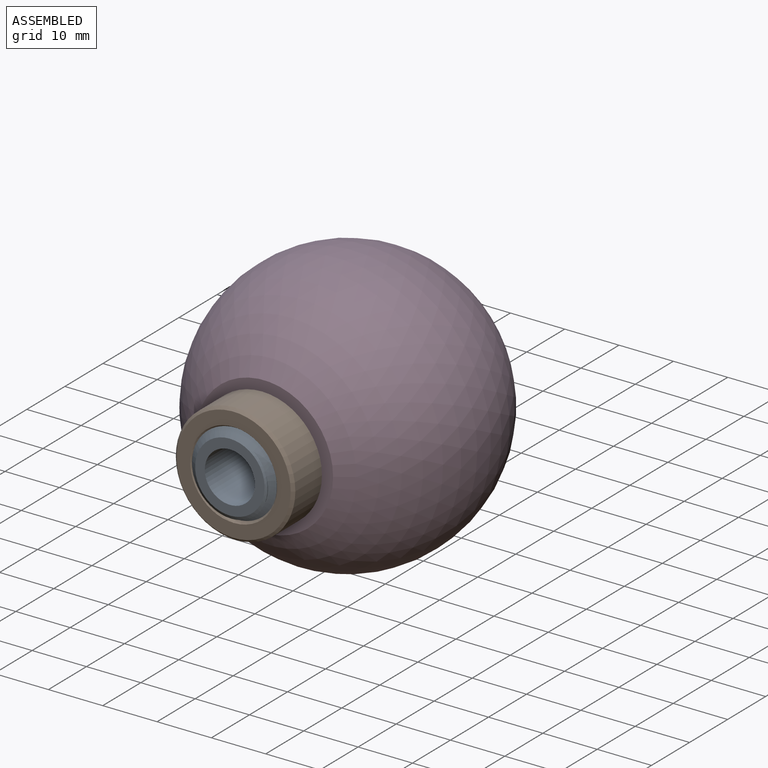
[diagram: assembled view]
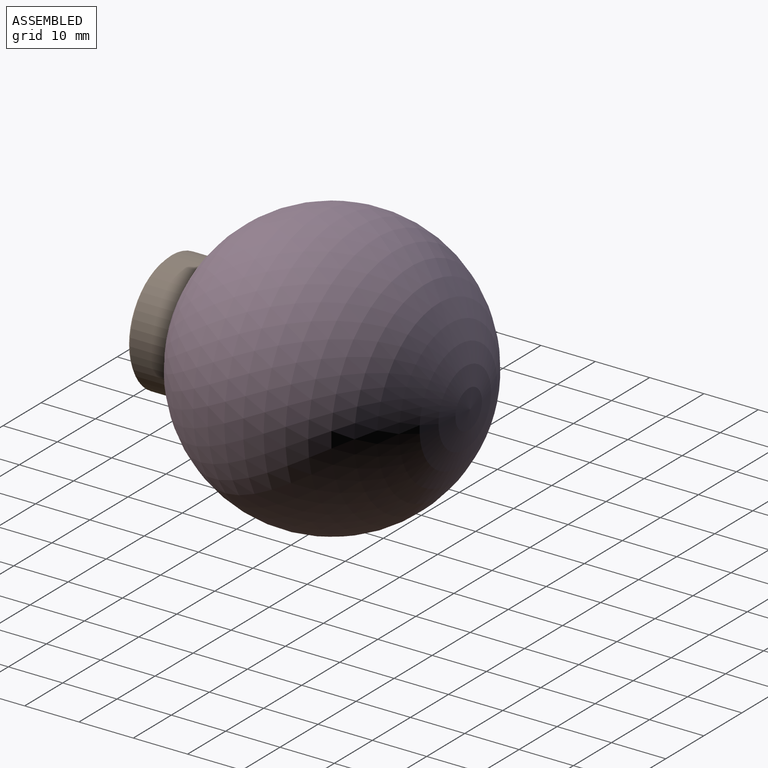
[diagram: assembled view, second angle]
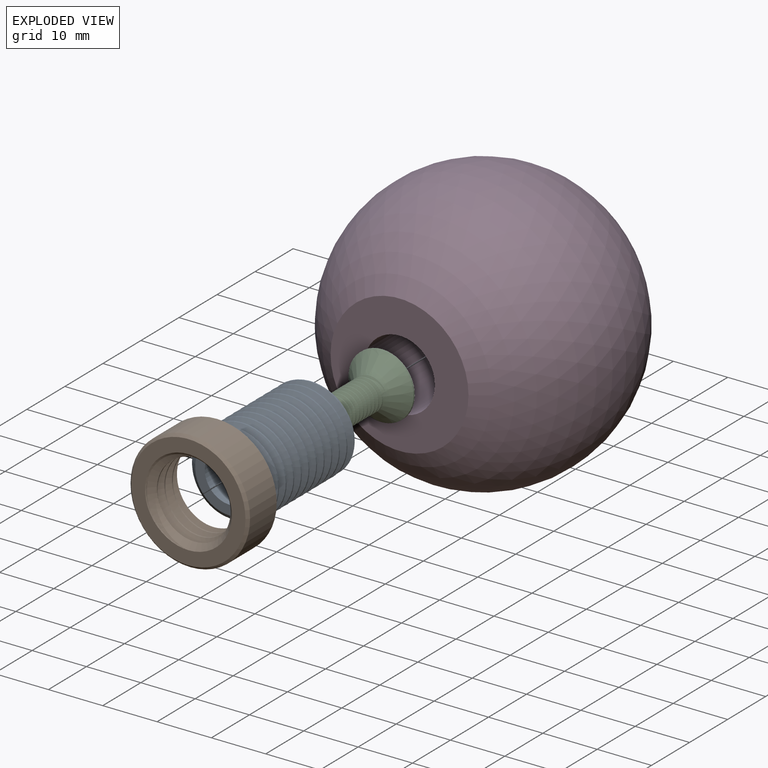
[diagram: exploded view]
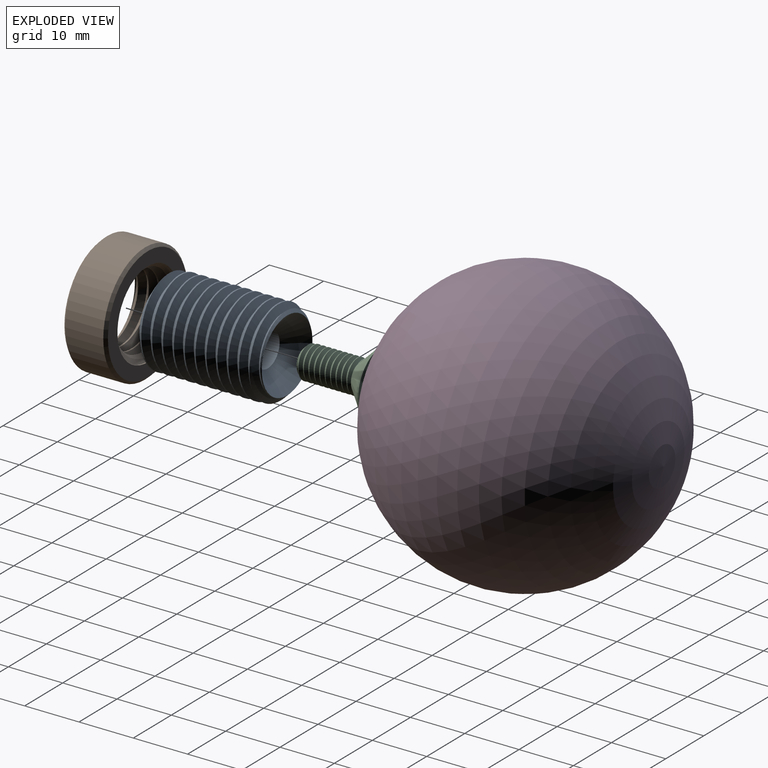
[diagram: exploded view, second angle]
ASSEMBLY  parts=4 mates=3
PART A: 11 faces, bbox 16x23.5x16 mm
  f0: cone r=4.38mm half-angle=45deg, axis (0,-1,0), area 44.2mm2, adj f1,f4,f5,f6,f10
  f1: cylinder r=8mm len=20.26mm, axis (0,-1,0), area 127.3mm2, adj f0,f2,f4,f6
  f2: cone r=8mm half-angle=55deg, axis (0,1,0), area 51mm2, adj f1,f3,f4,f5,f6
  f3: plane 12.8x12.8mm, normal (0,-1,0), area 61.7mm2, adj f2,f7
  f4: bspline ~23.22x15.99mm, area 739.5mm2, adj f0,f1,f2,f5
  f5: bspline ~23.05x14.09mm, area 118.3mm2, adj f0,f2,f4,f6
  f6: bspline ~22.68x16mm, area 676.6mm2, adj f0,f1,f2,f5
  f7: cylinder r=4.62mm len=15mm, axis (0,-1,0), area 435.3mm2, adj f3,f8
  f8: plane 9.24x9.24mm, normal (0,-1,0), area 36.8mm2, adj f7,f9
  f9: cylinder r=3.1mm len=6.2mm, axis (0,1,0), area 81.5mm2, adj f8,f10
  f10: cone r=3.1mm half-angle=45deg, axis (0,1,0), area 153.8mm2, adj f0,f9
PART B: 12 faces, bbox 22x22x9.5 mm
  f0: plane 21x21mm, normal (0,0,1), area 145.3mm2, adj f3,f4,f11
  f1: plane 21x21mm, normal (0,0,-1), area 145.3mm2, adj f2,f4,f10
  f2: cone r=8mm half-angle=45deg, axis (0,0,-1), area 43.3mm2, adj f1,f5,f6,f7,f8
  f3: cone r=8mm half-angle=45deg, axis (0,0,1), area 43.2mm2, adj f0,f5,f6,f7
  f4: cylinder r=8mm len=16mm, axis (0,0,-1), area 50.3mm2, adj f0,f1,f5,f7
  f5: bspline ~15.99x15.98mm, area 233.8mm2, adj f2,f3,f4,f6
  f6: bspline ~14.09x13.4mm, area 28.4mm2, adj f2,f3,f5,f7,f8
  f7: bspline ~15.99x15.99mm, area 204.2mm2, adj f2,f3,f4,f6
  f8: bspline ~13.64x13.64mm, area 13.7mm2, adj f2,f6
  f9: cylinder r=11mm len=22mm, axis (0,0,1), area 483.8mm2, adj f10,f11
  f10: cone r=11mm half-angle=45deg, axis (0,0,1), area 47.8mm2, adj f1,f9
  f11: cone r=10.5mm half-angle=45deg, axis (0,0,-1), area 47.8mm2, adj f0,f9
PART C: 23 faces, bbox 12.9x15.1x12.9 mm
  f0: cone r=2.31mm half-angle=45deg, axis (0,-1,0), area 0.5mm2, adj f1,f13
  f1: plane 2.53x2.53mm, normal (-1,0,0), area 4.9mm2, adj f0,f2,f9,f11
  f2: plane 4.62x4mm, normal (0,-1,0), area 13.9mm2, adj f1,f3,f5,f7,f9,f11
  f3: plane 3.19x2.88mm, normal (0.5,0,0.87), area 4.9mm2, adj f2,f4,f5,f11
  f4: cone r=2.31mm half-angle=45deg, axis (0,-1,0), area 0mm2, adj f3,f13
  f5: plane 3.19x3.18mm, normal (1,0,0), area 4.9mm2, adj f2,f3,f6,f7
  f6: cone r=2.31mm half-angle=45deg, axis (0,-1,0), area 0mm2, adj f5,f13
  f7: plane 3.19x2.88mm, normal (0.5,0,-0.87), area 4.9mm2, adj f2,f5,f8,f9
  f8: cone r=2.31mm half-angle=45deg, axis (0,-1,0), area 0mm2, adj f7,f13
  f9: plane 3.19x2.88mm, normal (-0.5,0,-0.87), area 4.9mm2, adj f1,f2,f7,f10
  f10: cone r=2.31mm half-angle=45deg, axis (0,-1,0), area 0mm2, adj f9,f13
  f11: plane 3.19x2.88mm, normal (-0.5,0,0.87), area 4.9mm2, adj f1,f2,f3,f12
  f12: cone r=2.31mm half-angle=45deg, axis (0,-1,0), area 0mm2, adj f11,f13
  f13: plane 12.75x12.75mm, normal (0,-1,0), area 96.3mm2, adj f0,f4,f6,f8,f10,f12,f14
  f14: cylinder r=6mm len=12mm, axis (0,-1,0), area 11.3mm2, adj f13,f15
  f15: cone r=3mm half-angle=45deg, axis (0,-1,0), area 127.8mm2, adj f14,f16,f19,f20,f21,f22
  f16: cylinder r=2.35mm len=9.95mm, axis (0,-1,0), area 18.4mm2, adj f15,f17,f19,f20,f22
  f17: cone r=2.25mm half-angle=45deg, axis (0,-1,0), area 9.5mm2, adj f16,f18,f20,f21,f22
  f18: plane 4.5x4.5mm, normal (0,1,0), area 15.9mm2, adj f17
  f19: cone r=3mm half-angle=45deg, axis (0,-1,0), area 0.1mm2, adj f15,f16,f20
  f20: bspline ~10.75x6mm, area 125.6mm2, adj f15,f16,f17,f19,f21
  f21: cylinder r=3mm len=9.95mm, axis (0,1,0), area 23.4mm2, adj f15,f17,f20,f22
  f22: bspline ~11.35x6mm, area 125.6mm2, adj f15,f16,f17,f21
PART D: 5 faces, bbox 50.8x50.8x47.4 mm
  f0: cylinder r=6.5mm len=32mm, axis (0,0,1), area 1306.9mm2, adj f1,f4
  f1: plane 25.39x25.39mm, normal (0,0,-1), area 373.6mm2, adj f0,f2
  f2: sphere r=25.4mm, area 7564.7mm2, adj f1
  f3: plane 3x3mm, normal (0,0,-1), area 7.1mm2, adj f4
  f4: cone r=6.5mm half-angle=45deg, axis (0,0,-1), area 177.7mm2, adj f0,f3
PLACE A t=(1.81,2.02,0.24)mm
PLACE B rot(axis=(-1,0,0),90deg) t=(1.81,-4.16,0.24)mm
PLACE C rot(axis=(-1,0,0),180deg) t=(1.81,13.57,0.24)mm
PLACE D rot(axis=(-1,0,0),90deg) t=(1.81,21.84,0.24)mm
MATE fastened B.f2 <-> D.f0  axis (0,1,0) through (1.81,-0.16,0.24)mm
MATE fastened C.f0 <-> A.f9  axis (0,1,0) through (1.81,13.57,0.24)mm
MATE fastened B.f2 <-> A.f0  axis (0,-1,0) through (1.81,-8.16,0.24)mm
